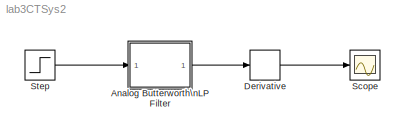
MODEL lab3CTSys2
KIND model
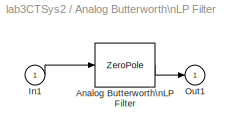
BLOCK [SubSystem] Analog Butterworth\nLP Filter
  Ports = [1, 1]
  RequestExecContextInheritance = off
  SID = 1
  Variant = off
BLOCK [ZeroPole] Analog Butterworth\nLP Filter/Analog Butterworth\nLP Filter
  Gain = k
  Poles = p
  SID = 3
  Zeros = z
BLOCK [Inport] Analog Butterworth\nLP Filter/In1
  IconDisplay = Port number
  SID = 2
BLOCK [Outport] Analog Butterworth\nLP Filter/Out1
  IconDisplay = Port number
  SID = 4
BLOCK [Derivative] Derivative
  SID = 5
BLOCK [Scope] Scope
  NumInputPorts = 1
  Ports = [1]
  SID = 6
  ScopeSpecificationString = Simulink.scopes.TimeScopeBlockCfg('CurrentConfiguration', extmgr.ConfigurationSet(extmgr.Configuration('Core','General UI',true),extmgr.Configuration('Core','Source UI',true),extmgr.Configuration('Sources','WiredSimulink',true,'DataLoggingSaveFormat','Array','DataLoggingLimitDataPoints',true,'DataLoggingDecimation','1','DataLoggingDecimateData',true),extmgr.Configuration('Visuals','Time Domain',tr...<+901ch>
BLOCK [Step] Step
  SID = 7
  SampleTime = 0
  Time = 0.00001
LINE Analog Butterworth\nLP Filter/Analog Butterworth\nLP Filter:1 -> Analog Butterworth\nLP Filter/Out1:1
LINE Analog Butterworth\nLP Filter/In1:1 -> Analog Butterworth\nLP Filter/Analog Butterworth\nLP Filter:1
LINE Analog Butterworth\nLP Filter:1 -> Derivative:1
LINE Derivative:1 -> Scope:1
LINE Step:1 -> Analog Butterworth\nLP Filter:1
